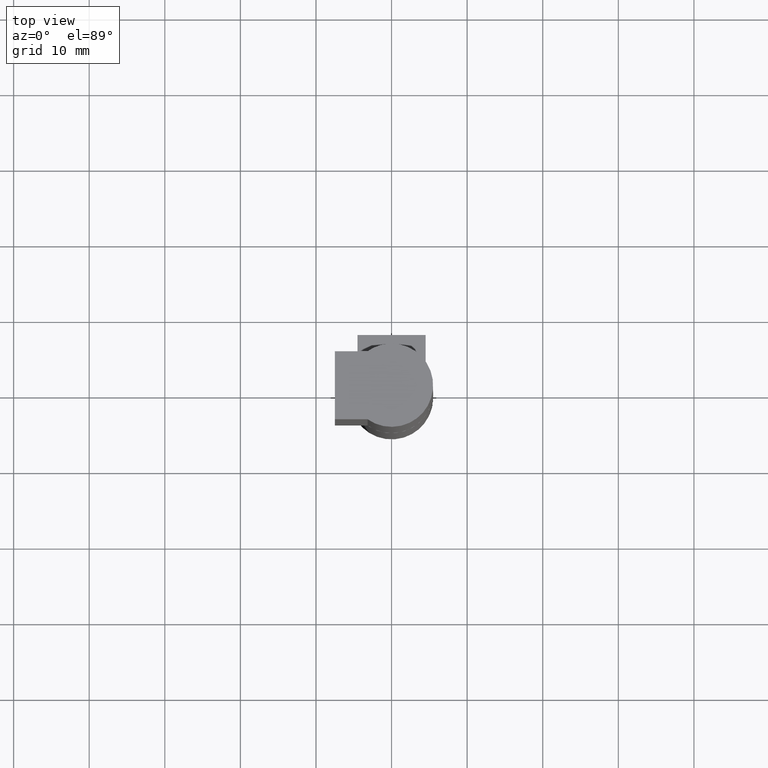
[diagram: clean part render]
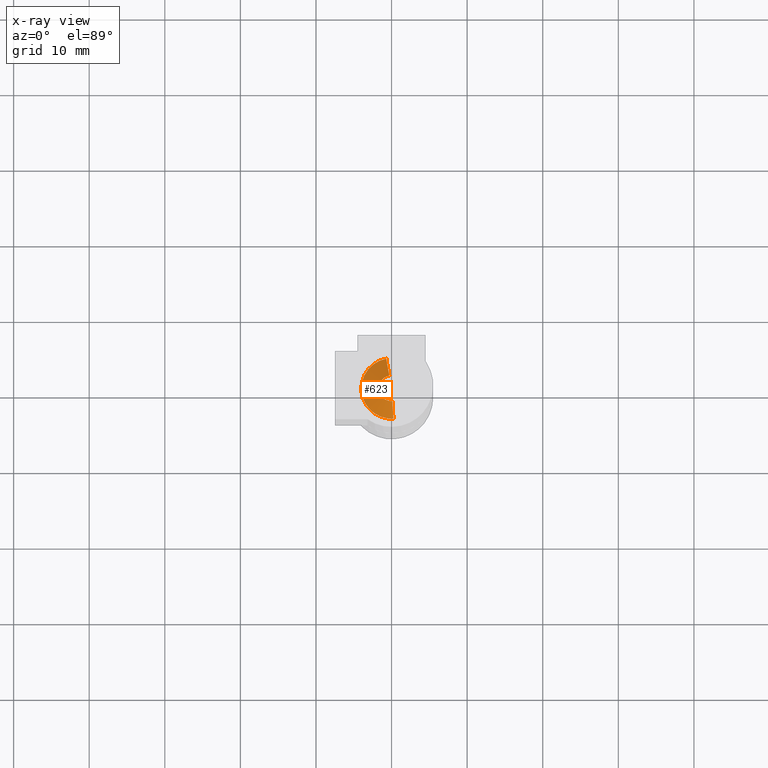
[diagram: x-ray — body ghosted, one internal face saturated and labeled with its STEP entity id]
A machine part, top view, then the same camera in x-ray: the body is ghosted and one INTERNAL B-rep face — a face not visible from any outside direction — is saturated and labeled: STEP entity #623.
In plain terms, the highlighted face is a freeform B-spline surface patch.
Its self-contained STEP definition (entity closure, byte-faithful):
#430=CARTESIAN_POINT('',(-0.703556394846605,3.937640146101061,70.248633757306067));
#431=VERTEX_POINT('',#430);
#449=CARTESIAN_POINT('',(-0.299011778639618,1.673498795032195,71.800002232242349));
#450=VERTEX_POINT('',#449);
#451=CARTESIAN_POINT('',(-0.299011778639618,1.673498795032195,71.800002232242349));
#452=CARTESIAN_POINT('',(-0.703556394846605,3.937640146101061,70.248633757306067));
#453=QUASI_UNIFORM_CURVE('',1,(#451,#452),.UNSPECIFIED.,.F.,.U.);
#454=EDGE_CURVE('',#450,#431,#453,.T.);
#473=CARTESIAN_POINT('',(0.103782630863802,-1.696830995174275,71.800002232259473));
#474=VERTEX_POINT('',#473);
#488=CARTESIAN_POINT('',(0.244194170812968,-3.992539383410816,70.248633757286768));
#489=VERTEX_POINT('',#488);
#490=CARTESIAN_POINT('',(0.103782630863802,-1.696830995174275,71.800002232259473));
#491=CARTESIAN_POINT('',(0.244194170812968,-3.992539383410816,70.248633757286768));
#492=QUASI_UNIFORM_CURVE('',1,(#490,#491),.UNSPECIFIED.,.F.,.U.);
#493=EDGE_CURVE('',#474,#489,#492,.T.);
#526=CARTESIAN_POINT('',(0.100272341108077,-1.639438285367217,71.838786444253643));
#527=CARTESIAN_POINT('',(-1.539165944259141,-1.739710626475294,71.838786444253643));
#528=CARTESIAN_POINT('',(-1.639438285367217,-0.100272341108077,71.838786444253643));
#529=CARTESIAN_POINT('',(-1.728729972946447,1.359633846029384,71.838786444253643));
#530=CARTESIAN_POINT('',(-0.288898161620105,1.616895261336250,71.838786444253643));
#531=CARTESIAN_POINT('',(0.247792215453773,-4.051366910771725,70.208879940218694));
#532=CARTESIAN_POINT('',(-3.803574695317953,-4.299159126225498,70.208879940218694));
#533=CARTESIAN_POINT('',(-4.051366910771725,-0.247792215453773,70.208879940218694));
#534=CARTESIAN_POINT('',(-4.272023822162832,3.359916395593341,70.208879940218694));
#535=CARTESIAN_POINT('',(-0.713922849684039,3.995658768267700,70.208879940218708));
#543=(BOUNDED_SURFACE()B_SPLINE_SURFACE(2,1,((#526,#531),(#527,#532),(#528,#533),(#529,#534),(#530,#535)),.UNSPECIFIED.,.F.,.F.,.U.)B_SPLINE_SURFACE_WITH_KNOTS((3,2,3),(2,2),(0.0,6.725068089979431,12.912130732760509),(0.0,2.914748191399748),.UNSPECIFIED.)GEOMETRIC_REPRESENTATION_ITEM()RATIONAL_B_SPLINE_SURFACE(((1.0,1.0),(0.707106781186548,0.707106781186548),(1.0,1.0),(0.730538238691624,0.730538238691624),(0.956886118190660,0.956886118190660)))REPRESENTATION_ITEM('')SURFACE());
#544=CARTESIAN_POINT('',(-4.000000189989680,0.0,70.248633757390294));
#545=VERTEX_POINT('',#544);
#546=CARTESIAN_POINT('',(-4.000000189989680,0.0,70.248633757390294));
#547=CARTESIAN_POINT('',(-4.000000189989680,3.348649270857478,70.248633757390294));
#548=CARTESIAN_POINT('',(-0.703556394846605,3.937640146101061,70.248633757306067));
#556=(BOUNDED_CURVE()B_SPLINE_CURVE(2,(#546,#547,#548),.UNSPECIFIED.,.F.,.U.)B_SPLINE_CURVE_WITH_KNOTS((3,3),(0.0,0.219772408947605),.UNSPECIFIED.)CURVE()GEOMETRIC_REPRESENTATION_ITEM()RATIONAL_B_SPLINE_CURVE((1.0,0.742520606947799,0.937736145619193))REPRESENTATION_ITEM(''));
#557=EDGE_CURVE('',#545,#431,#556,.T.);
#558=ORIENTED_EDGE('',*,*,#557,.F.);
#559=CARTESIAN_POINT('',(-0.496512032075315,-3.969065043800891,70.248633757390309));
#560=VERTEX_POINT('',#559);
#561=CARTESIAN_POINT('',(-0.496512032075315,-3.969065043800891,70.248633757390309));
#562=CARTESIAN_POINT('',(-4.000000189989680,-3.530794567994428,70.248633757390309));
#563=CARTESIAN_POINT('',(-4.000000189989680,0.0,70.248633757390294));
#571=(BOUNDED_CURVE()B_SPLINE_CURVE(2,(#561,#562,#563),.UNSPECIFIED.,.F.,.U.)B_SPLINE_CURVE_WITH_KNOTS((3,3),(0.771473928985399,1.0),.UNSPECIFIED.)CURVE()GEOMETRIC_REPRESENTATION_ITEM()RATIONAL_B_SPLINE_CURVE((0.954005430246196,0.732265053910968,1.0))REPRESENTATION_ITEM(''));
#572=EDGE_CURVE('',#560,#545,#571,.T.);
#573=ORIENTED_EDGE('',*,*,#572,.F.);
#574=CARTESIAN_POINT('',(0.244194170812968,-3.992539383410816,70.248633757286768));
#575=CARTESIAN_POINT('',(0.122211060067630,-4.000000189989681,70.248633757390294));
#576=CARTESIAN_POINT('',(0.0,-4.000000189989680,70.248633757390294));
#577=CARTESIAN_POINT('',(-0.249219722146262,-4.000000189989681,70.248633757390280));
#578=CARTESIAN_POINT('',(-0.496512032075315,-3.969065043800891,70.248633757390309));
#586=(BOUNDED_CURVE()B_SPLINE_CURVE(2,(#574,#575,#576,#577,#578),.UNSPECIFIED.,.F.,.U.)B_SPLINE_CURVE_WITH_KNOTS((3,2,3),(0.739332962149866,0.750000000000000,0.771473928985400),.UNSPECIFIED.)CURVE()GEOMETRIC_REPRESENTATION_ITEM()RATIONAL_B_SPLINE_CURVE((0.976072041475808,0.987502787795477,1.0,0.974841727275579,0.954005430246194))REPRESENTATION_ITEM(''));
#587=EDGE_CURVE('',#489,#560,#586,.T.);
#588=ORIENTED_EDGE('',*,*,#587,.F.);
#589=ORIENTED_EDGE('',*,*,#493,.F.);
#590=CARTESIAN_POINT('',(-1.700001841190495,0.0,71.800002232378915));
#591=VERTEX_POINT('',#590);
#592=CARTESIAN_POINT('',(0.103782630863802,-1.696830995174275,71.800002232259473));
#593=CARTESIAN_POINT('',(0.051939755106284,-1.700001841190495,71.800002232378915));
#594=CARTESIAN_POINT('',(0.0,-1.700001841190495,71.800002232378915));
#595=CARTESIAN_POINT('',(-1.700001841190495,-1.700001841190495,71.800002232378915));
#596=CARTESIAN_POINT('',(-1.700001841190495,0.0,71.800002232378915));
#604=(BOUNDED_CURVE()B_SPLINE_CURVE(2,(#592,#593,#594,#595,#596),.UNSPECIFIED.,.F.,.U.)B_SPLINE_CURVE_WITH_KNOTS((3,2,3),(0.739332961989428,0.750000000000000,1.0),.UNSPECIFIED.)CURVE()GEOMETRIC_REPRESENTATION_ITEM()RATIONAL_B_SPLINE_CURVE((0.976072041131960,0.987502787607513,1.0,0.707106781186547,1.0))REPRESENTATION_ITEM(''));
#605=EDGE_CURVE('',#474,#591,#604,.T.);
#606=ORIENTED_EDGE('',*,*,#605,.T.);
#607=CARTESIAN_POINT('',(-1.700001841190495,0.0,71.800002232378915));
#608=CARTESIAN_POINT('',(-1.700001841190495,1.423177411887417,71.800002232378930));
#609=CARTESIAN_POINT('',(-0.299011778639618,1.673498795032195,71.800002232242349));
#617=(BOUNDED_CURVE()B_SPLINE_CURVE(2,(#607,#608,#609),.UNSPECIFIED.,.F.,.U.)B_SPLINE_CURVE_WITH_KNOTS((3,3),(0.0,0.219772408717699),.UNSPECIFIED.)CURVE()GEOMETRIC_REPRESENTATION_ITEM()RATIONAL_B_SPLINE_CURVE((1.0,0.742520607217150,0.937736145210760))REPRESENTATION_ITEM(''));
#618=EDGE_CURVE('',#591,#450,#617,.T.);
#619=ORIENTED_EDGE('',*,*,#618,.T.);
#620=ORIENTED_EDGE('',*,*,#454,.T.);
#621=EDGE_LOOP('',(#558,#573,#588,#589,#606,#619,#620));
#622=FACE_OUTER_BOUND('',#621,.T.);
#623=ADVANCED_FACE('',(#622),#543,.T.);